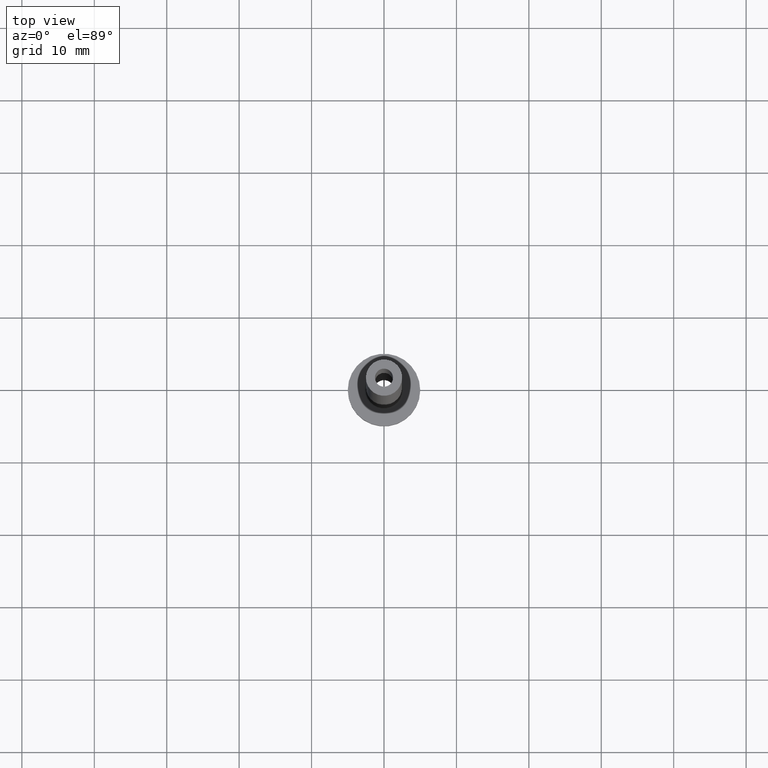
[diagram: clean part render]
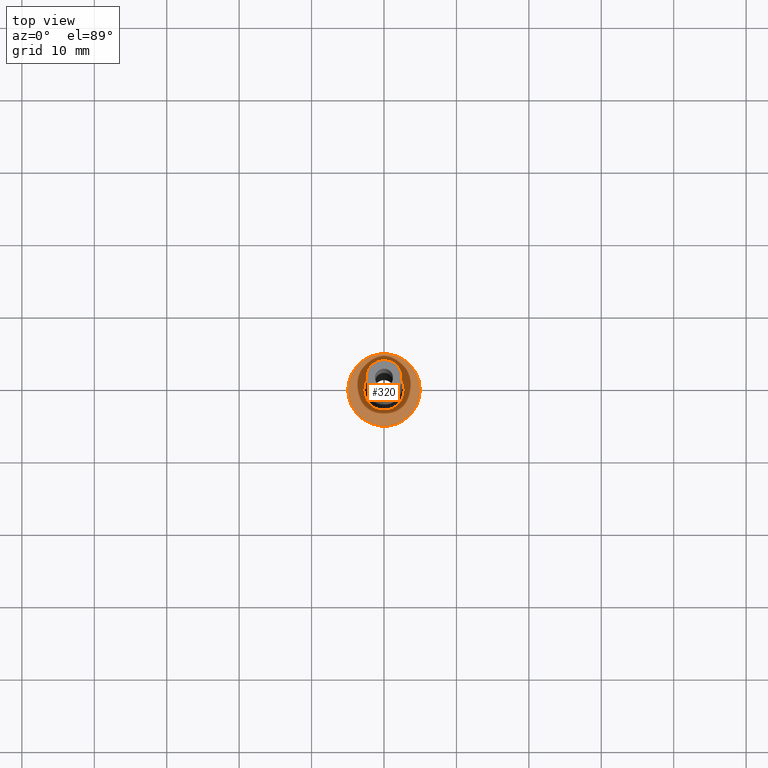
[diagram: same view with one face highlighted and labeled with its STEP entity id]
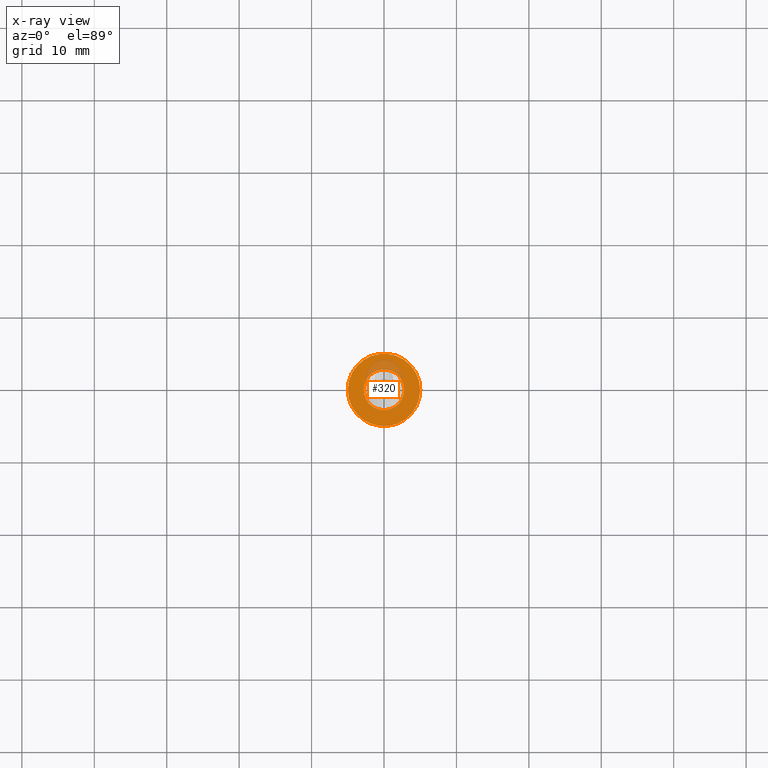
[diagram: x-ray of the same camera — body ghosted, the highlighted face saturated]
A machine part, top view. The second image highlights one B-rep face of the part: STEP entity #320.
The next image is the same camera in x-ray: the body ghosted, the highlighted face saturated — about 12% of this face is hidden behind the body in this view.
In plain terms, the highlighted planar face has unit normal (0, 0, 1).
Its self-contained STEP definition (entity closure, byte-faithful):
#5 = FACE_OUTER_BOUND ( 'NONE', #127, .T. ) ;
#16 = AXIS2_PLACEMENT_3D ( 'NONE', #95, #144, #136 ) ;
#17 = CIRCLE ( 'NONE', #331, 2.799999999999999822 ) ;
#26 = VERTEX_POINT ( 'NONE', #64 ) ;
#29 = DIRECTION ( 'NONE',  ( 1.000000000000000000, 0.000000000000000000, 0.000000000000000000 ) ) ;
#39 = AXIS2_PLACEMENT_3D ( 'NONE', #416, #347, #29 ) ;
#49 = CIRCLE ( 'NONE', #39, 5.000000000000000000 ) ;
#50 = AXIS2_PLACEMENT_3D ( 'NONE', #220, #359, #109 ) ;
#53 = ORIENTED_EDGE ( 'NONE', *, *, #193, .T. ) ;
#54 = EDGE_CURVE ( 'NONE', #440, #26, #49, .T. ) ;
#64 = CARTESIAN_POINT ( 'NONE',  ( 5.000000000000000000, 6.123233995736766282E-16, 3.000000000000000000 ) ) ;
#76 = CARTESIAN_POINT ( 'NONE',  ( -2.799999999999999822, 3.429011037612589276E-16, 2.999999999999998668 ) ) ;
#86 = CARTESIAN_POINT ( 'NONE',  ( 0.000000000000000000, 0.000000000000000000, 3.000000000000000000 ) ) ;
#89 = EDGE_CURVE ( 'NONE', #263, #131, #291, .T. ) ;
#95 = CARTESIAN_POINT ( 'NONE',  ( 0.000000000000000000, 0.000000000000000000, 3.000000000000000000 ) ) ;
#109 = DIRECTION ( 'NONE',  ( 1.000000000000000000, 0.000000000000000000, 0.000000000000000000 ) ) ;
#127 = EDGE_LOOP ( 'NONE', ( #328, #53 ) ) ;
#131 = VERTEX_POINT ( 'NONE', #459 ) ;
#136 = DIRECTION ( 'NONE',  ( 1.000000000000000000, 0.000000000000000000, 0.000000000000000000 ) ) ;
#144 = DIRECTION ( 'NONE',  ( -0.000000000000000000, -0.000000000000000000, -1.000000000000000000 ) ) ;
#155 = DIRECTION ( 'NONE',  ( 1.000000000000000000, 0.000000000000000000, -0.000000000000000000 ) ) ;
#179 = EDGE_LOOP ( 'NONE', ( #356, #310 ) ) ;
#193 = EDGE_CURVE ( 'NONE', #26, #440, #272, .T. ) ;
#219 = CARTESIAN_POINT ( 'NONE',  ( 0.000000000000000000, 0.000000000000000000, 3.000000000000000000 ) ) ;
#220 = CARTESIAN_POINT ( 'NONE',  ( 0.000000000000000000, 0.000000000000000000, 3.000000000000000000 ) ) ;
#222 = AXIS2_PLACEMENT_3D ( 'NONE', #86, #365, #155 ) ;
#232 = CARTESIAN_POINT ( 'NONE',  ( -5.000000000000000000, 0.000000000000000000, 3.000000000000000000 ) ) ;
#260 = FACE_BOUND ( 'NONE', #179, .T. ) ;
#263 = VERTEX_POINT ( 'NONE', #76 ) ;
#270 = EDGE_CURVE ( 'NONE', #131, #263, #17, .T. ) ;
#272 = CIRCLE ( 'NONE', #50, 5.000000000000000000 ) ;
#281 = DIRECTION ( 'NONE',  ( -0.000000000000000000, -0.000000000000000000, -1.000000000000000000 ) ) ;
#291 = CIRCLE ( 'NONE', #16, 2.799999999999999822 ) ;
#310 = ORIENTED_EDGE ( 'NONE', *, *, #89, .T. ) ;
#320 = ADVANCED_FACE ( 'NONE', ( #260, #5 ), #403, .T. ) ;
#328 = ORIENTED_EDGE ( 'NONE', *, *, #54, .T. ) ;
#331 = AXIS2_PLACEMENT_3D ( 'NONE', #219, #281, #428 ) ;
#347 = DIRECTION ( 'NONE',  ( 0.000000000000000000, 0.000000000000000000, 1.000000000000000000 ) ) ;
#356 = ORIENTED_EDGE ( 'NONE', *, *, #270, .T. ) ;
#359 = DIRECTION ( 'NONE',  ( 0.000000000000000000, 0.000000000000000000, 1.000000000000000000 ) ) ;
#365 = DIRECTION ( 'NONE',  ( 0.000000000000000000, 0.000000000000000000, 1.000000000000000000 ) ) ;
#403 = PLANE ( 'NONE',  #222 ) ;
#416 = CARTESIAN_POINT ( 'NONE',  ( 0.000000000000000000, 0.000000000000000000, 3.000000000000000000 ) ) ;
#428 = DIRECTION ( 'NONE',  ( 1.000000000000000000, 0.000000000000000000, 0.000000000000000000 ) ) ;
#440 = VERTEX_POINT ( 'NONE', #232 ) ;
#459 = CARTESIAN_POINT ( 'NONE',  ( 2.799999999999999822, 0.000000000000000000, 2.999999999999998668 ) ) ;